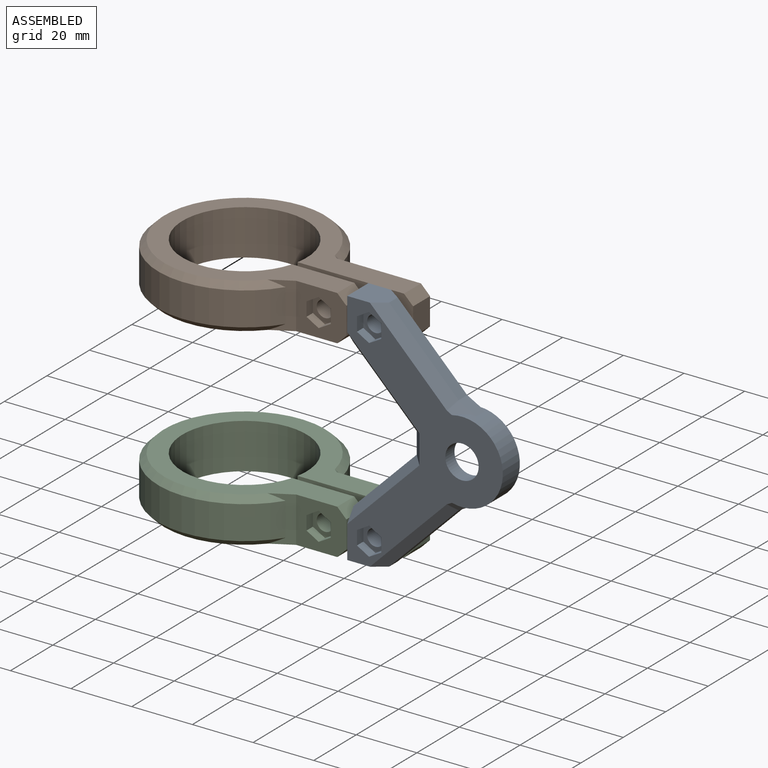
[diagram: assembled view]
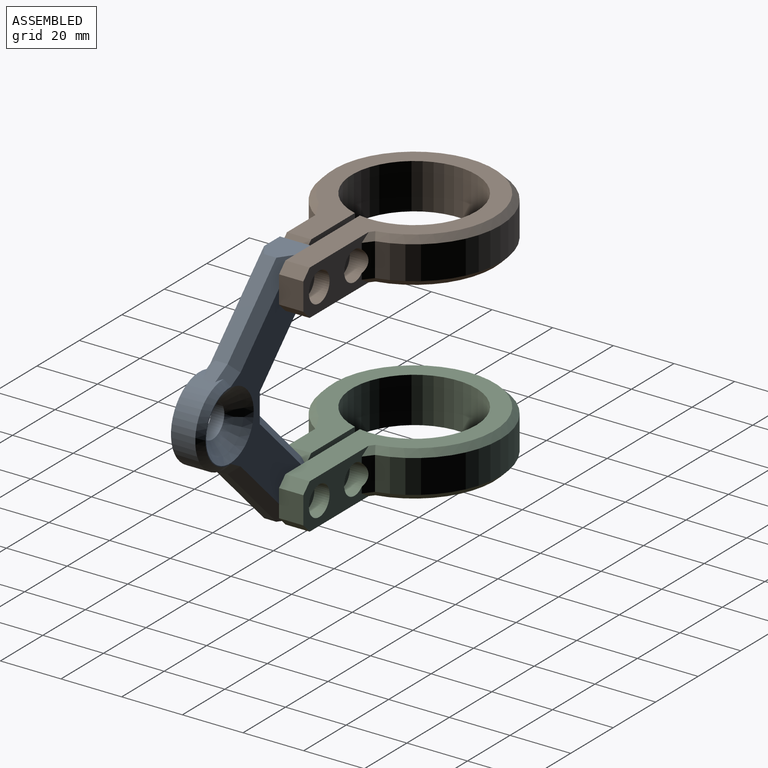
[diagram: assembled view, second angle]
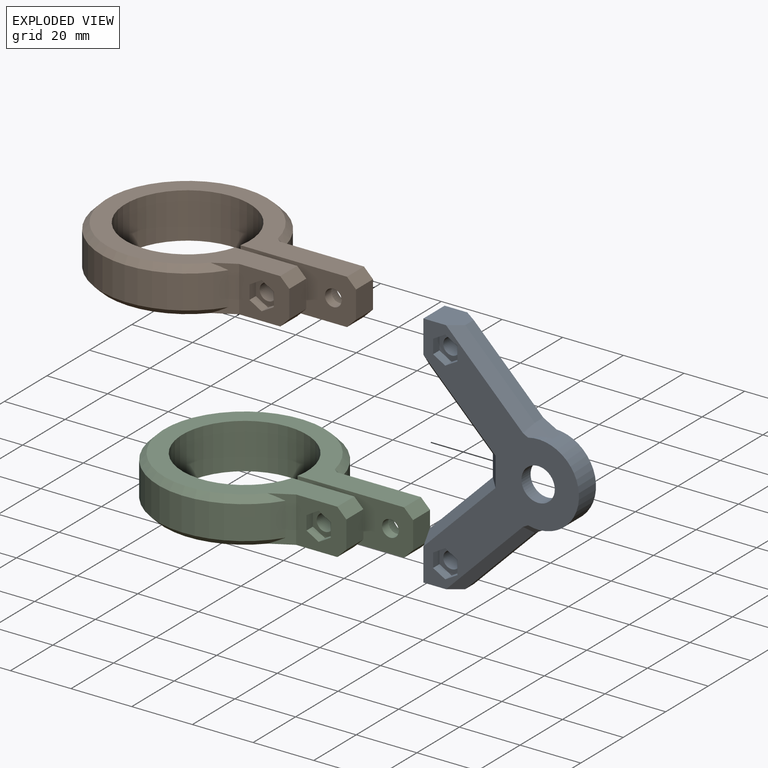
[diagram: exploded view]
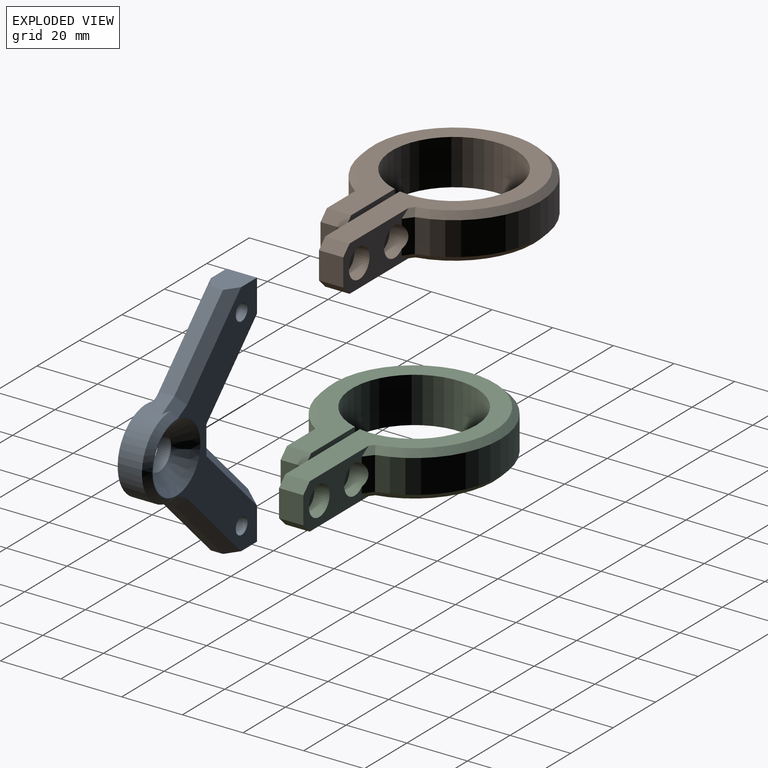
[diagram: exploded view, second angle]
ASSEMBLY  parts=3 mates=6
PART A: 47 faces, bbox 51.3x78.7x10 mm
  f0: cylinder r=5.5mm len=11mm, axis (0,0,-1), area 148.6mm2, adj f1,f46
  f1: plane 78.68x51.31mm, normal (0,0,-1), area 1358.6mm2, adj f0,f4,f7,f8,f10,f12,f17,f18
  f2: cylinder r=2.75mm len=7mm, axis (0,0,1), area 121mm2, adj f13,f30
  f3: cylinder r=2.75mm len=7mm, axis (0,0,1), area 121mm2, adj f13,f23
  f4: plane 15x10mm, normal (-1,0,0), area 137.3mm2, adj f1,f5,f12,f13,f39,f44
  f5: plane 20.8x20.8mm, normal (-0.71,-0.71,0), area 117.7mm2, adj f4,f14,f39,f44
  f6: plane 20.8x20.8mm, normal (-0.71,0.71,0), area 117.7mm2, adj f7,f14,f41,f42
  f7: plane 15x10mm, normal (-1,0,0), area 137.3mm2, adj f1,f6,f8,f13,f41,f42
  f8: plane 11.7x10mm, normal (0,-1,0), area 104.3mm2, adj f1,f7,f9,f13,f33,f35
  f9: plane 22.94x22.94mm, normal (0.71,-0.71,0), area 129.8mm2, adj f8,f15,f33,f35
  f10: cylinder r=13.48mm len=26.97mm, axis (0,0,-1), area 318.4mm2, adj f1,f15,f16,f31,f34,f36,f38,f45
  f11: plane 22.94x22.94mm, normal (0.71,0.71,0), area 129.8mm2, adj f12,f16,f32,f37
  f12: plane 11.7x10mm, normal (0,1,0), area 104.3mm2, adj f1,f4,f11,f13,f32,f37
  f13: plane 78.68x49.31mm, normal (0,0,1), area 1036.7mm2, adj f2,f3,f4,f7,f8,f12,f31,f32
  f14: plane 7.07x4mm, normal (-1,0,0), area 28.3mm2, adj f5,f6,f40,f43
  f15: plane 5.92x4mm, normal (0.48,-0.88,0), area 26.9mm2, adj f9,f10,f34,f36
  f16: plane 5.92x4mm, normal (0.48,0.88,0), area 26.9mm2, adj f10,f11,f31,f38
  f17: plane 4.62x3mm, normal (-1,0,0), area 13.9mm2, adj f1,f18,f22,f23
  f18: plane 4x3mm, normal (-0.5,0.87,0), area 13.9mm2, adj f1,f17,f19,f23
  f19: plane 4x3mm, normal (0.5,0.87,0), area 13.9mm2, adj f1,f18,f20,f23
  f20: plane 4.62x3mm, normal (1,0,0), area 13.9mm2, adj f1,f19,f21,f23
  f21: plane 4x3mm, normal (0.5,-0.87,0), area 13.9mm2, adj f1,f20,f22,f23
  f22: plane 4x3mm, normal (-0.5,-0.87,0), area 13.9mm2, adj f1,f17,f21,f23
  f23: plane 9.24x8mm, normal (0,0,-1), area 31.7mm2, adj f3,f17,f18,f19,f20,f21,f22
  f24: plane 4.62x3mm, normal (-1,0,0), area 13.9mm2, adj f1,f25,f29,f30
  f25: plane 4x3mm, normal (-0.5,0.87,0), area 13.9mm2, adj f1,f24,f26,f30
  f26: plane 4x3mm, normal (0.5,0.87,0), area 13.9mm2, adj f1,f25,f27,f30
  f27: plane 4.62x3mm, normal (1,0,0), area 13.9mm2, adj f1,f26,f28,f30
  f28: plane 4x3mm, normal (0.5,-0.87,0), area 13.9mm2, adj f1,f27,f29,f30
  f29: plane 4x3mm, normal (-0.5,-0.87,0), area 13.9mm2, adj f1,f24,f28,f30
  f30: plane 9.24x8mm, normal (0,0,-1), area 31.7mm2, adj f2,f24,f25,f26,f27,f28,f29
  f31: plane 7.73x4.92mm, normal (0.34,0.62,0.71), area 21.4mm2, adj f10,f13,f16,f32,f45
  f32: plane 27.18x25.37mm, normal (0.5,0.5,0.71), area 144.9mm2, adj f11,f12,f13,f31
  f33: plane 27.18x25.37mm, normal (0.5,-0.5,0.71), area 144.9mm2, adj f8,f9,f13,f34
  f34: plane 7.73x4.92mm, normal (0.34,-0.62,0.71), area 21.4mm2, adj f10,f13,f15,f33,f45
  f35: plane 27.18x25.37mm, normal (0.5,-0.5,-0.71), area 144.9mm2, adj f1,f8,f9,f36
  f36: plane 7.73x3.33mm, normal (0.34,-0.62,-0.71), area 16.3mm2, adj f1,f10,f15,f35
  f37: plane 27.18x25.37mm, normal (0.5,0.5,-0.71), area 144.9mm2, adj f1,f11,f12,f38
  f38: plane 7.73x3.33mm, normal (0.34,0.62,-0.71), area 16.3mm2, adj f1,f10,f16,f37
  f39: plane 25.05x23.8mm, normal (-0.5,-0.5,-0.71), area 133.8mm2, adj f1,f4,f5,f40
  f40: plane 9.56x3mm, normal (-0.71,0,-0.71), area 35.3mm2, adj f1,f14,f39,f41
  f41: plane 25.05x23.8mm, normal (-0.5,0.5,-0.71), area 133.8mm2, adj f1,f6,f7,f40
  f42: plane 25.05x23.8mm, normal (-0.5,0.5,0.71), area 133.8mm2, adj f6,f7,f13,f43
  f43: plane 9.56x3mm, normal (-0.71,0,0.71), area 35.3mm2, adj f13,f14,f42,f44
  f44: plane 25.05x23.8mm, normal (-0.5,-0.5,0.71), area 133.8mm2, adj f4,f5,f13,f43
  f45: cone r=11.48mm half-angle=45deg, axis (0,0,-1), area 111.7mm2, adj f10,f13,f31,f34
  f46: cone r=4.4mm half-angle=45deg, axis (0,0,1), area 422.9mm2, adj f0,f13
PART B: 34 faces, bbox 86.7x57x15 mm
  f0: plane 16.54x15mm, normal (0,-1,0), area 183.7mm2, adj f2,f8,f9,f17,f18,f19,f23,f24
  f1: cylinder r=2.75mm len=5.5mm, axis (0,1,0), area 86.4mm2, adj f3,f29
  f2: plane 9x8mm, normal (1,0,0), area 72mm2, adj f0,f3,f18,f19
  f3: plane 23.53x15mm, normal (0,1,0), area 320.1mm2, adj f1,f2,f4,f8,f9,f18,f19
  f4: cylinder r=20.5mm len=41mm, axis (0,0,-1), area 1901.2mm2, adj f3,f5,f8,f9
  f5: plane 38.04x15mm, normal (0,-1,0), area 514.1mm2, adj f4,f8,f9,f10,f11,f15,f16,f20
  f6: plane 30.74x15mm, normal (0,1,0), area 268.1mm2, adj f8,f9,f10,f13,f14,f15,f16,f22
  f7: cylinder r=28.5mm len=57mm, axis (0,0,-1), area 1721.1mm2, adj f14,f17,f30,f32
  f8: plane 81.69x53mm, normal (0,0,1), area 1237.5mm2, adj f0,f3,f4,f5,f6,f16,f17,f19
  f9: plane 81.69x53mm, normal (0,0,-1), area 1237.5mm2, adj f0,f3,f4,f5,f6,f15,f17,f18
  f10: plane 9x8mm, normal (1,0,0), area 72mm2, adj f5,f6,f15,f16
  f11: cylinder r=2.75mm len=5.5mm, axis (0,1,0), area 51.8mm2, adj f5,f12
  f12: plane 9.75x9.75mm, normal (0,1,0), area 50.9mm2, adj f11,f13
  f13: cylinder r=4.88mm len=9.75mm, axis (0,1,0), area 159.2mm2, adj f6,f12,f14
  f14: plane 11x2.92mm, normal (0.62,0.78,0), area 31.9mm2, adj f6,f7,f13,f31,f33
  f15: plane 8x3mm, normal (0.71,0,-0.71), area 33.9mm2, adj f5,f6,f9,f10
  f16: plane 8x3mm, normal (0.71,0,0.71), area 33.9mm2, adj f5,f6,f8,f10
  f17: plane 15x6.78mm, normal (0.48,-0.88,0), area 52.6mm2, adj f0,f7,f8,f9,f30,f32
  f18: plane 8x3mm, normal (0.71,0,-0.71), area 33.9mm2, adj f0,f2,f3,f9
  f19: plane 8x3mm, normal (0.71,0,0.71), area 33.9mm2, adj f0,f2,f3,f8
  f20: cylinder r=2.75mm len=5.5mm, axis (0,1,0), area 51.8mm2, adj f5,f21
  f21: plane 9.75x9.75mm, normal (0,1,0), area 50.9mm2, adj f20,f22
  f22: cylinder r=4.88mm len=9.75mm, axis (0,1,0), area 153.2mm2, adj f6,f21
  f23: plane 4.62x3mm, normal (-1,0,0), area 13.9mm2, adj f0,f24,f28,f29
  f24: plane 4x3mm, normal (-0.5,0,-0.87), area 13.9mm2, adj f0,f23,f25,f29
  f25: plane 4x3mm, normal (0.5,0,-0.87), area 13.9mm2, adj f0,f24,f26,f29
  f26: plane 4.62x3mm, normal (1,0,0), area 13.9mm2, adj f0,f25,f27,f29
  f27: plane 4x3mm, normal (0.5,0,0.87), area 13.9mm2, adj f0,f26,f28,f29
  f28: plane 4x3mm, normal (-0.5,0,0.87), area 13.9mm2, adj f0,f23,f27,f29
  f29: plane 9.24x8mm, normal (0,-1,0), area 31.7mm2, adj f1,f23,f24,f25,f26,f27,f28
  f30: cone r=28.5mm half-angle=45deg, axis (0,0,1), area 422.4mm2, adj f7,f9,f17,f31
  f31: plane 4.74x2.33mm, normal (0.44,0.55,-0.71), area 8mm2, adj f6,f9,f14,f30
  f32: cone r=26.5mm half-angle=45deg, axis (0,0,-1), area 422.4mm2, adj f7,f8,f17,f33
  f33: plane 4.74x2.33mm, normal (0.44,0.55,0.71), area 8mm2, adj f6,f8,f14,f32
PART C: same geometry as B
PLACE A rot(axis=(-1,0,0),90deg) t=(59.7,-14.04,-57.77)mm
PLACE B t=(-26.63,-0.24,-33.43)mm
PLACE C t=(-26.63,-0.24,-97.11)mm
MATE parallel B.f10 <-> A.f14  axis (1,0,0) through (31.56,-0.04,-25.93)mm
MATE planar C.f20 <-> A.f13  axis (0,-1,0) through (24.06,-4.04,-89.61)mm
MATE parallel A.f14 <-> C.f10  axis (-1,0,0) through (37.66,-9.04,-57.77)mm
MATE revolute A.f2 <-> C.f20  axis (0,1,0) through (24.06,-4.04,-89.61)mm
MATE planar B.f20 <-> A.f13  axis (0,-1,0) through (24.06,-4.04,-25.93)mm
MATE revolute A.f3 <-> B.f20  axis (0,1,0) through (24.06,-4.04,-25.93)mm
